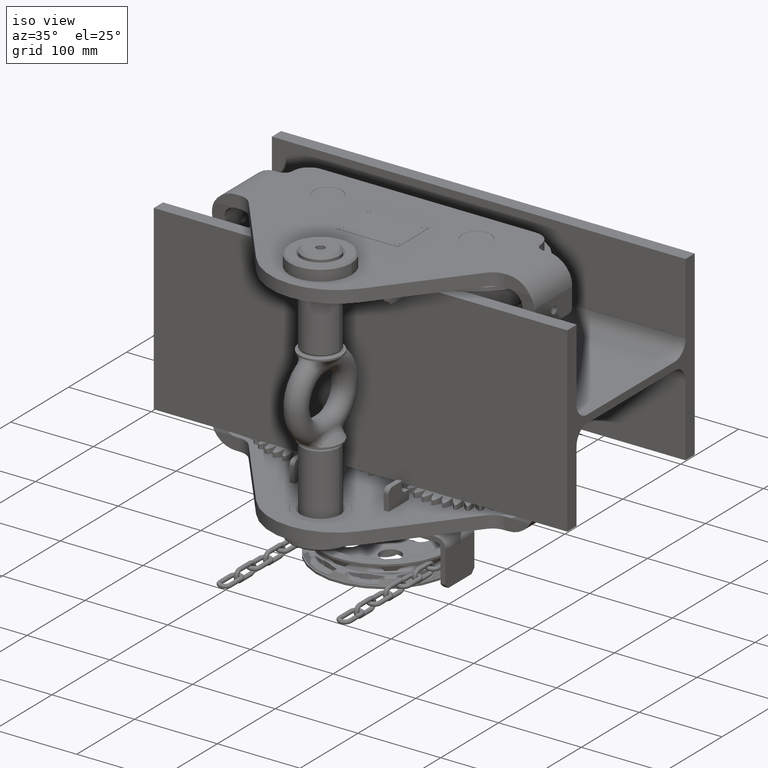
[diagram: clean part render]
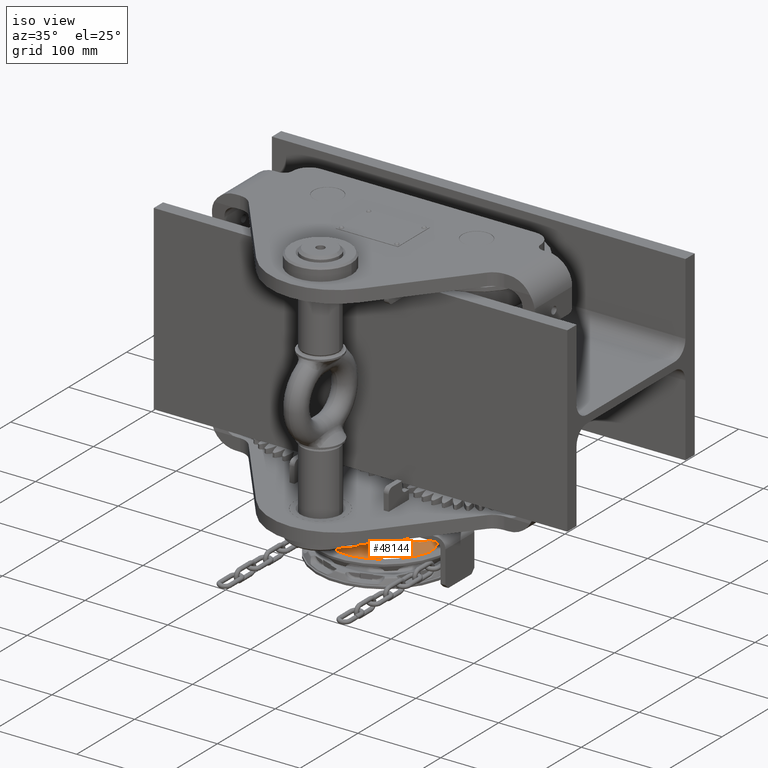
[diagram: same view with one face highlighted and labeled with its STEP entity id]
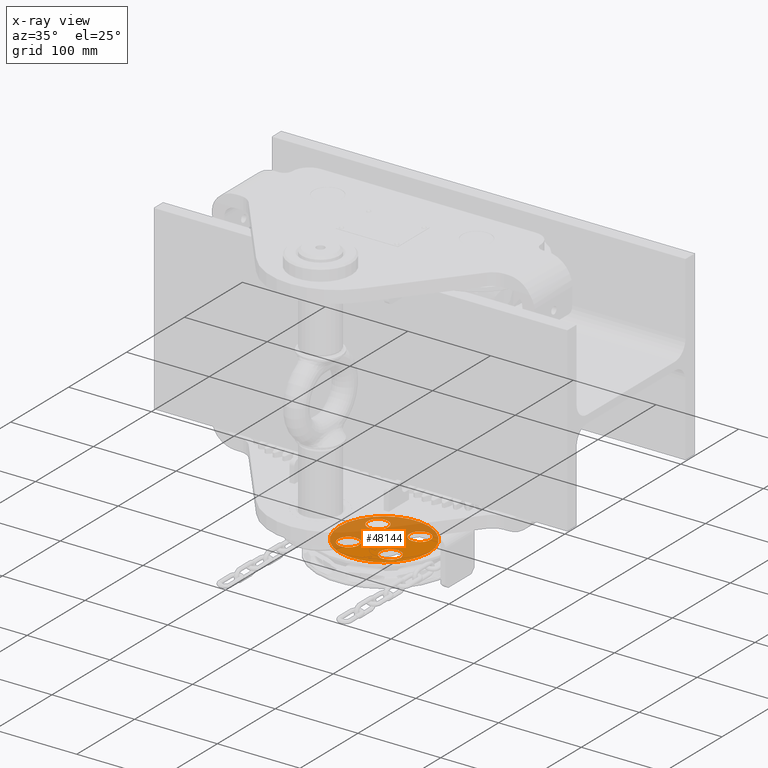
[diagram: x-ray of the same camera — body ghosted, the highlighted face saturated]
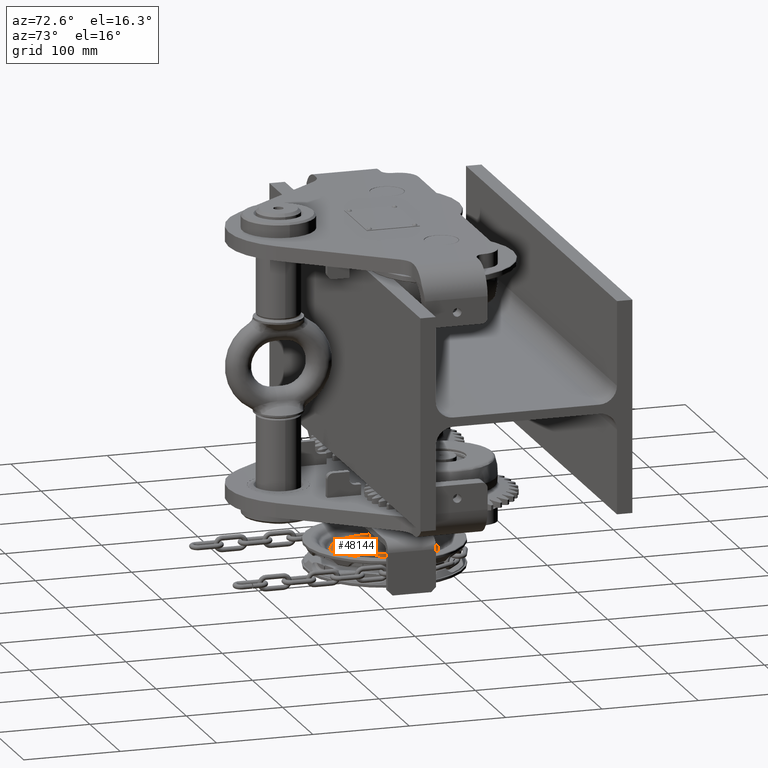
[diagram: same view with one face highlighted and labeled with its STEP entity id]
A machine part, iso view. The second image highlights one B-rep face of the part: STEP entity #48144.
The next image is the same camera in x-ray: the body ghosted, the highlighted face saturated — about 53% of this face is hidden behind the body in this view.
A second angle (auxiliary view) of the same face is appended — the face is thin or edge-on in the first view.
In plain terms, the highlighted planar face has unit normal (0, 0, 1).
Its self-contained STEP definition (entity closure, byte-faithful):
#93 = DIRECTION ( 'NONE',  ( 1.000000000000000000, 0.0000000000000000000, -4.652534965088990400E-015 ) ) ;
#2140 = CIRCLE ( 'NONE', #75225, 12.50000000000001800 ) ;
#2877 = CIRCLE ( 'NONE', #27194, 12.50000000000001400 ) ;
#3901 = CARTESIAN_POINT ( 'NONE',  ( -25.45584412271973600, -43.62415587727966200, -200.9999999999995500 ) ) ;
#5071 = CARTESIAN_POINT ( 'NONE',  ( 25.45584412271539100, -43.62415587728192900, -200.9999999999997400 ) ) ;
#6411 = EDGE_CURVE ( 'NONE', #26093, #25883, #72428, .T. ) ;
#6905 = ORIENTED_EDGE ( 'NONE', *, *, #49963, .F. ) ;
#6906 = EDGE_CURVE ( 'NONE', #25883, #26093, #111260, .T. ) ;
#8172 = EDGE_CURVE ( 'NONE', #85681, #11420, #2140, .T. ) ;
#9306 = CARTESIAN_POINT ( 'NONE',  ( -7.698995252740590200E-013, -69.07999999999999800, -200.9999999999995700 ) ) ;
#10312 = ORIENTED_EDGE ( 'NONE', *, *, #93297, .T. ) ;
#11420 = VERTEX_POINT ( 'NONE', #32106 ) ;
#12894 = CARTESIAN_POINT ( 'NONE',  ( -17.89706632442206000, -69.07999999999999800, -200.9999999999995200 ) ) ;
#14052 = EDGE_LOOP ( 'NONE', ( #97425, #93894 ) ) ;
#17492 = EDGE_LOOP ( 'NONE', ( #10312, #28432 ) ) ;
#19357 = DIRECTION ( 'NONE',  ( -3.889090410080496300E-015, -5.529568124670938500E-018, -1.000000000000000000 ) ) ;
#20160 = EDGE_CURVE ( 'NONE', #11420, #85681, #63856, .T. ) ;
#21043 = DIRECTION ( 'NONE',  ( 3.889090410080496300E-015, 5.529568124670938500E-018, 1.000000000000000000 ) ) ;
#21763 = CARTESIAN_POINT ( 'NONE',  ( 25.45584412271309900, -94.53584412271700900, -200.9999999999997400 ) ) ;
#21860 = VERTEX_POINT ( 'NONE', #51037 ) ;
#22181 = DIRECTION ( 'NONE',  ( 3.889090410080499500E-015, 5.529568124670938500E-018, 1.000000000000000000 ) ) ;
#22216 = CARTESIAN_POINT ( 'NONE',  ( -7.698995252740591200E-013, -69.07999999999999800, -200.9999999999996000 ) ) ;
#22497 = AXIS2_PLACEMENT_3D ( 'NONE', #23312, #22181, #50145 ) ;
#23171 = AXIS2_PLACEMENT_3D ( 'NONE', #85025, #40167, #111799 ) ;
#23312 = CARTESIAN_POINT ( 'NONE',  ( -7.659255782527362200E-013, -86.97706632442128700, -200.9999999999996000 ) ) ;
#24124 = DIRECTION ( 'NONE',  ( -3.889090410080496300E-015, -5.529568124670938500E-018, -1.000000000000000000 ) ) ;
#25253 = AXIS2_PLACEMENT_3D ( 'NONE', #73838, #38693, #29768 ) ;
#25883 = VERTEX_POINT ( 'NONE', #31611 ) ;
#26093 = VERTEX_POINT ( 'NONE', #80301 ) ;
#26641 = VERTEX_POINT ( 'NONE', #115011 ) ;
#27194 = AXIS2_PLACEMENT_3D ( 'NONE', #72250, #91303, #73822 ) ;
#27674 = AXIS2_PLACEMENT_3D ( 'NONE', #37437, #82320, #28510 ) ;
#27914 = VERTEX_POINT ( 'NONE', #95217 ) ;
#28292 = ORIENTED_EDGE ( 'NONE', *, *, #72671, .T. ) ;
#28432 = ORIENTED_EDGE ( 'NONE', *, *, #41977, .T. ) ;
#28510 = DIRECTION ( 'NONE',  ( -1.000000000000000000, 0.0000000000000000000, 4.440892098500626200E-015 ) ) ;
#29768 = DIRECTION ( 'NONE',  ( -1.000000000000000000, 0.0000000000000000000, 4.440892098500626200E-015 ) ) ;
#30082 = CIRCLE ( 'NONE', #63687, 17.89706632442128900 ) ;
#31416 = CIRCLE ( 'NONE', #99513, 12.50000000000000000 ) ;
#31611 = CARTESIAN_POINT ( 'NONE',  ( 37.95584412271309600, -94.53584412271700900, -200.9999999999998000 ) ) ;
#32106 = CARTESIAN_POINT ( 'NONE',  ( -12.95584412271972700, -43.62415587727965500, -200.9999999999996000 ) ) ;
#34094 = AXIS2_PLACEMENT_3D ( 'NONE', #21763, #56739, #40362 ) ;
#35215 = EDGE_LOOP ( 'NONE', ( #28292, #99084 ) ) ;
#36420 = DIRECTION ( 'NONE',  ( 1.000000000000000000, 2.566394944623848400E-016, -4.106231911398157500E-015 ) ) ;
#37437 = CARTESIAN_POINT ( 'NONE',  ( 25.45584412271539100, -43.62415587728192900, -200.9999999999997400 ) ) ;
#38693 = DIRECTION ( 'NONE',  ( -3.889090410080496300E-015, -5.529568124670938500E-018, -1.000000000000000000 ) ) ;
#39608 = ORIENTED_EDGE ( 'NONE', *, *, #103286, .T. ) ;
#40167 = DIRECTION ( 'NONE',  ( 3.889090410080496300E-015, 5.529568124670938500E-018, 1.000000000000000000 ) ) ;
#40362 = DIRECTION ( 'NONE',  ( -1.000000000000000000, 0.0000000000000000000, 4.440892098500626200E-015 ) ) ;
#40678 = FACE_BOUND ( 'NONE', #67958, .T. ) ;
#41977 = EDGE_CURVE ( 'NONE', #27914, #26641, #88094, .T. ) ;
#43584 = CIRCLE ( 'NONE', #27674, 12.50000000000000000 ) ;
#44472 = EDGE_CURVE ( 'NONE', #55808, #77998, #31416, .T. ) ;
#44797 = ORIENTED_EDGE ( 'NONE', *, *, #108947, .F. ) ;
#48144 = ADVANCED_FACE ( 'NONE', ( #99177, #40678, #64376, #69948, #76975, #50425 ), #76696, .T. ) ;
#49382 = DIRECTION ( 'NONE',  ( -1.000000000000000000, 0.0000000000000000000, 4.440892098500626200E-015 ) ) ;
#49963 = EDGE_CURVE ( 'NONE', #53304, #110297, #30082, .T. ) ;
#50145 = DIRECTION ( 'NONE',  ( 1.000000000000000000, 2.220446049250264800E-016, -3.889090410080499500E-015 ) ) ;
#50425 = FACE_BOUND ( 'NONE', #52219, .T. ) ;
#51037 = CARTESIAN_POINT ( 'NONE',  ( -37.95584412272207000, -94.53584412271472100, -200.9999999999994900 ) ) ;
#52219 = EDGE_LOOP ( 'NONE', ( #44797, #6905 ) ) ;
#53301 = CARTESIAN_POINT ( 'NONE',  ( 17.89706632442051800, -69.07999999999999800, -200.9999999999996900 ) ) ;
#53304 = VERTEX_POINT ( 'NONE', #12894 ) ;
#53731 = EDGE_CURVE ( 'NONE', #94611, #21860, #60402, .T. ) ;
#55264 = CIRCLE ( 'NONE', #105206, 17.89706632442128900 ) ;
#55808 = VERTEX_POINT ( 'NONE', #75852 ) ;
#56739 = DIRECTION ( 'NONE',  ( -3.889090410080496300E-015, -5.529568124670938500E-018, -1.000000000000000000 ) ) ;
#56868 = CARTESIAN_POINT ( 'NONE',  ( -37.95584412271975300, -43.62415587727966200, -200.9999999999994900 ) ) ;
#60402 = CIRCLE ( 'NONE', #114170, 12.50000000000001400 ) ;
#62656 = CARTESIAN_POINT ( 'NONE',  ( -7.698995252740591200E-013, -69.07999999999999800, -200.9999999999996000 ) ) ;
#63687 = AXIS2_PLACEMENT_3D ( 'NONE', #22216, #21043, #65030 ) ;
#63856 = CIRCLE ( 'NONE', #110444, 12.50000000000001800 ) ;
#64376 = FACE_BOUND ( 'NONE', #35215, .T. ) ;
#65030 = DIRECTION ( 'NONE',  ( 1.000000000000000000, 0.0000000000000000000, -4.652534965088990400E-015 ) ) ;
#67958 = EDGE_LOOP ( 'NONE', ( #108948, #85640 ) ) ;
#69948 = FACE_BOUND ( 'NONE', #14052, .T. ) ;
#71522 = DIRECTION ( 'NONE',  ( 3.889090410080496300E-015, 5.529568124670938500E-018, 1.000000000000000000 ) ) ;
#72250 = CARTESIAN_POINT ( 'NONE',  ( -25.45584412272205600, -94.53584412271472100, -200.9999999999995500 ) ) ;
#72428 = CIRCLE ( 'NONE', #34094, 12.50000000000000000 ) ;
#72671 = EDGE_CURVE ( 'NONE', #21860, #94611, #2877, .T. ) ;
#73441 = CIRCLE ( 'NONE', #83058, 54.07502783967842000 ) ;
#73822 = DIRECTION ( 'NONE',  ( -1.000000000000000000, 0.0000000000000000000, 4.440892098500621400E-015 ) ) ;
#73838 = CARTESIAN_POINT ( 'NONE',  ( 25.45584412271309900, -94.53584412271700900, -200.9999999999997400 ) ) ;
#75225 = AXIS2_PLACEMENT_3D ( 'NONE', #3901, #84100, #110868 ) ;
#75852 = CARTESIAN_POINT ( 'NONE',  ( 12.95584412271539100, -43.62415587728192900, -200.9999999999996900 ) ) ;
#76696 = PLANE ( 'NONE',  #22497 ) ;
#76975 = FACE_OUTER_BOUND ( 'NONE', #17492, .T. ) ;
#77998 = VERTEX_POINT ( 'NONE', #110628 ) ;
#78266 = CARTESIAN_POINT ( 'NONE',  ( -25.45584412271973600, -43.62415587727966200, -200.9999999999995500 ) ) ;
#80301 = CARTESIAN_POINT ( 'NONE',  ( 12.95584412271309700, -94.53584412271700900, -200.9999999999996900 ) ) ;
#80912 = DIRECTION ( 'NONE',  ( -1.000000000000000000, 0.0000000000000000000, 4.440892098500621400E-015 ) ) ;
#82320 = DIRECTION ( 'NONE',  ( -3.889090410080496300E-015, -5.529568124670938500E-018, -1.000000000000000000 ) ) ;
#83058 = AXIS2_PLACEMENT_3D ( 'NONE', #9306, #71522, #36420 ) ;
#84100 = DIRECTION ( 'NONE',  ( -3.889090410080496300E-015, -5.529568124670938500E-018, -1.000000000000000000 ) ) ;
#85025 = CARTESIAN_POINT ( 'NONE',  ( -7.698995252740590200E-013, -69.07999999999999800, -200.9999999999995700 ) ) ;
#85640 = ORIENTED_EDGE ( 'NONE', *, *, #20160, .T. ) ;
#85681 = VERTEX_POINT ( 'NONE', #56868 ) ;
#88094 = CIRCLE ( 'NONE', #23171, 54.07502783967842000 ) ;
#91284 = EDGE_LOOP ( 'NONE', ( #100899, #39608 ) ) ;
#91303 = DIRECTION ( 'NONE',  ( -3.889090410080496300E-015, -5.529568124670938500E-018, -1.000000000000000000 ) ) ;
#93297 = EDGE_CURVE ( 'NONE', #26641, #27914, #73441, .T. ) ;
#93894 = ORIENTED_EDGE ( 'NONE', *, *, #6906, .T. ) ;
#94611 = VERTEX_POINT ( 'NONE', #95577 ) ;
#95217 = CARTESIAN_POINT ( 'NONE',  ( -54.07502783967918000, -69.07999999999999800, -200.9999999999993500 ) ) ;
#95577 = CARTESIAN_POINT ( 'NONE',  ( -12.95584412272204700, -94.53584412271472100, -200.9999999999996000 ) ) ;
#97425 = ORIENTED_EDGE ( 'NONE', *, *, #6411, .T. ) ;
#99084 = ORIENTED_EDGE ( 'NONE', *, *, #53731, .T. ) ;
#99177 = FACE_BOUND ( 'NONE', #91284, .T. ) ;
#99513 = AXIS2_PLACEMENT_3D ( 'NONE', #5071, #108521, #49382 ) ;
#100899 = ORIENTED_EDGE ( 'NONE', *, *, #44472, .T. ) ;
#103286 = EDGE_CURVE ( 'NONE', #77998, #55808, #43584, .T. ) ;
#104662 = DIRECTION ( 'NONE',  ( -1.000000000000000000, 0.0000000000000000000, 4.440892098500619900E-015 ) ) ;
#105206 = AXIS2_PLACEMENT_3D ( 'NONE', #62656, #115254, #93 ) ;
#108521 = DIRECTION ( 'NONE',  ( -3.889090410080496300E-015, -5.529568124670938500E-018, -1.000000000000000000 ) ) ;
#108824 = CARTESIAN_POINT ( 'NONE',  ( -25.45584412272205600, -94.53584412271472100, -200.9999999999995500 ) ) ;
#108947 = EDGE_CURVE ( 'NONE', #110297, #53304, #55264, .T. ) ;
#108948 = ORIENTED_EDGE ( 'NONE', *, *, #8172, .T. ) ;
#110297 = VERTEX_POINT ( 'NONE', #53301 ) ;
#110444 = AXIS2_PLACEMENT_3D ( 'NONE', #78266, #24124, #104662 ) ;
#110628 = CARTESIAN_POINT ( 'NONE',  ( 37.95584412271539100, -43.62415587728192200, -200.9999999999998000 ) ) ;
#110868 = DIRECTION ( 'NONE',  ( -1.000000000000000000, 0.0000000000000000000, 4.440892098500619900E-015 ) ) ;
#111260 = CIRCLE ( 'NONE', #25253, 12.50000000000000000 ) ;
#111799 = DIRECTION ( 'NONE',  ( 1.000000000000000000, 2.566394944623848400E-016, -4.106231911398157500E-015 ) ) ;
#114170 = AXIS2_PLACEMENT_3D ( 'NONE', #108824, #19357, #80912 ) ;
#115011 = CARTESIAN_POINT ( 'NONE',  ( 54.07502783967765200, -69.07999999999998400, -200.9999999999998000 ) ) ;
#115254 = DIRECTION ( 'NONE',  ( 3.889090410080496300E-015, 5.529568124670938500E-018, 1.000000000000000000 ) ) ;